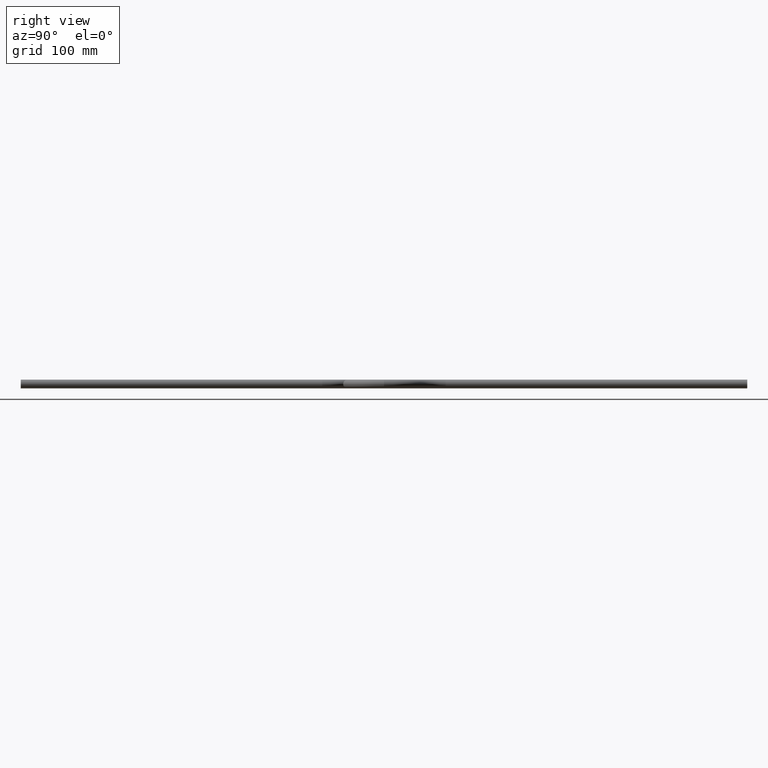
[diagram: clean part render]
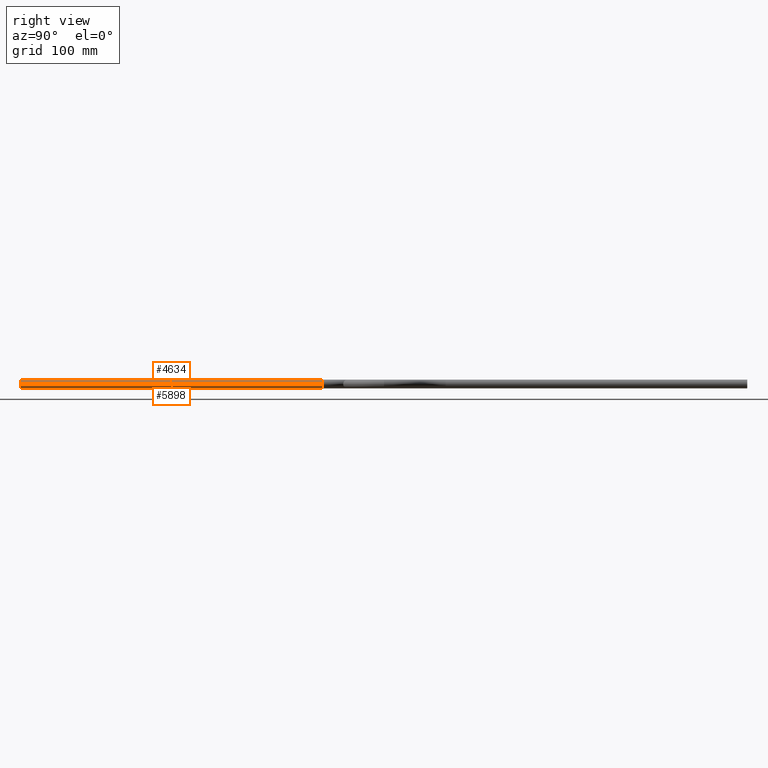
[diagram: same view with one multi-face feature highlighted, each face labeled with its STEP entity id]
A machine part, right view. The highlighted faces form ONE feature: a constant-radius fillet chain: 2 tangent blend faces with common blend radius 6 mm. The faces share edges in the B-rep.
Their STEP definitions:
[1] entity #4634 (Cylinder):
#59 = CARTESIAN_POINT ( 'NONE',  ( 6.000000000000000900, 0.0000000000000000000, 0.0000000000000000000 ) ) ;
#395 = VECTOR ( 'NONE', #6186, 1000.000000000000000 ) ;
#588 = ORIENTED_EDGE ( 'NONE', *, *, #3270, .T. ) ;
#1015 = ORIENTED_EDGE ( 'NONE', *, *, #1929, .T. ) ;
#1109 = VERTEX_POINT ( 'NONE', #1862 ) ;
#1172 = ORIENTED_EDGE ( 'NONE', *, *, #5190, .F. ) ;
#1279 = EDGE_LOOP ( 'NONE', ( #1172, #588, #1015, #6140 ) ) ;
#1304 = CARTESIAN_POINT ( 'NONE',  ( 9.281620964509639900E-016, 415.0000000000000000, 0.0000000000000000000 ) ) ;
#1669 = CIRCLE ( 'NONE', #1974, 6.000000000000000900 ) ;
#1770 = LINE ( 'NONE', #3269, #395 ) ;
#1832 = DIRECTION ( 'NONE',  ( 0.0000000000000000000, 0.0000000000000000000, 1.000000000000000000 ) ) ;
#1862 = CARTESIAN_POINT ( 'NONE',  ( -6.000000000000001800, 0.0000000000000000000, 7.347880794884122700E-016 ) ) ;
#1929 = EDGE_CURVE ( 'NONE', #1109, #3875, #3215, .T. ) ;
#1974 = AXIS2_PLACEMENT_3D ( 'NONE', #1304, #4915, #1832 ) ;
#2421 = CARTESIAN_POINT ( 'NONE',  ( 6.000000000000001800, 415.0000000000000000, 0.0000000000000000000 ) ) ;
#3174 = CARTESIAN_POINT ( 'NONE',  ( 9.281620964509639900E-016, 415.0000000000000000, 0.0000000000000000000 ) ) ;
#3215 = CIRCLE ( 'NONE', #3753, 6.000000000000000900 ) ;
#3269 = CARTESIAN_POINT ( 'NONE',  ( 6.000000000000001800, 415.0000000000000000, 0.0000000000000000000 ) ) ;
#3270 = EDGE_CURVE ( 'NONE', #4274, #1109, #5724, .T. ) ;
#3308 = CYLINDRICAL_SURFACE ( 'NONE', #3805, 6.000000000000000900 ) ;
#3476 = FACE_OUTER_BOUND ( 'NONE', #1279, .T. ) ;
#3753 = AXIS2_PLACEMENT_3D ( 'NONE', #5016, #5012, #4997 ) ;
#3805 = AXIS2_PLACEMENT_3D ( 'NONE', #3174, #6086, #5201 ) ;
#3844 = DIRECTION ( 'NONE',  ( -2.236535172170997900E-018, -1.000000000000000000, -0.0000000000000000000 ) ) ;
#3875 = VERTEX_POINT ( 'NONE', #59 ) ;
#4274 = VERTEX_POINT ( 'NONE', #5626 ) ;
#4461 = VECTOR ( 'NONE', #3844, 1000.000000000000000 ) ;
#4634 = ADVANCED_FACE ( 'NONE', ( #3476 ), #3308, .T. ) ;
#4915 = DIRECTION ( 'NONE',  ( 0.0000000000000000000, 1.000000000000000000, 0.0000000000000000000 ) ) ;
#4997 = DIRECTION ( 'NONE',  ( 0.0000000000000000000, 0.0000000000000000000, 1.000000000000000000 ) ) ;
#5012 = DIRECTION ( 'NONE',  ( 0.0000000000000000000, 1.000000000000000000, 0.0000000000000000000 ) ) ;
#5016 = CARTESIAN_POINT ( 'NONE',  ( 0.0000000000000000000, 0.0000000000000000000, 0.0000000000000000000 ) ) ;
#5190 = EDGE_CURVE ( 'NONE', #4274, #5757, #1669, .T. ) ;
#5201 = DIRECTION ( 'NONE',  ( 1.000000000000000000, 0.0000000000000000000, 0.0000000000000000000 ) ) ;
#5481 = CARTESIAN_POINT ( 'NONE',  ( -6.000000000000000000, 415.0000000000000000, 7.347880794884120700E-016 ) ) ;
#5626 = CARTESIAN_POINT ( 'NONE',  ( -6.000000000000000000, 415.0000000000000000, 7.347880794884120700E-016 ) ) ;
#5724 = LINE ( 'NONE', #5481, #4461 ) ;
#5757 = VERTEX_POINT ( 'NONE', #2421 ) ;
#6045 = EDGE_CURVE ( 'NONE', #5757, #3875, #1770, .T. ) ;
#6086 = DIRECTION ( 'NONE',  ( -2.236535172170997900E-018, -1.000000000000000000, -0.0000000000000000000 ) ) ;
#6140 = ORIENTED_EDGE ( 'NONE', *, *, #6045, .F. ) ;
#6186 = DIRECTION ( 'NONE',  ( -2.236535172170997900E-018, -1.000000000000000000, -0.0000000000000000000 ) ) ;
[2] entity #5898 (Cylinder):
#59 = CARTESIAN_POINT ( 'NONE',  ( 6.000000000000000900, 0.0000000000000000000, 0.0000000000000000000 ) ) ;
#395 = VECTOR ( 'NONE', #6186, 1000.000000000000000 ) ;
#807 = CIRCLE ( 'NONE', #2895, 6.000000000000000900 ) ;
#1109 = VERTEX_POINT ( 'NONE', #1862 ) ;
#1481 = CARTESIAN_POINT ( 'NONE',  ( 9.281620964509639900E-016, 415.0000000000000000, 0.0000000000000000000 ) ) ;
#1524 = EDGE_LOOP ( 'NONE', ( #1860, #5751, #1978, #6204 ) ) ;
#1770 = LINE ( 'NONE', #3269, #395 ) ;
#1774 = DIRECTION ( 'NONE',  ( 0.0000000000000000000, 1.000000000000000000, 0.0000000000000000000 ) ) ;
#1860 = ORIENTED_EDGE ( 'NONE', *, *, #3270, .F. ) ;
#1862 = CARTESIAN_POINT ( 'NONE',  ( -6.000000000000001800, 0.0000000000000000000, 7.347880794884122700E-016 ) ) ;
#1879 = DIRECTION ( 'NONE',  ( 0.0000000000000000000, 1.000000000000000000, 0.0000000000000000000 ) ) ;
#1978 = ORIENTED_EDGE ( 'NONE', *, *, #6045, .T. ) ;
#2421 = CARTESIAN_POINT ( 'NONE',  ( 6.000000000000001800, 415.0000000000000000, 0.0000000000000000000 ) ) ;
#2895 = AXIS2_PLACEMENT_3D ( 'NONE', #4867, #1774, #5348 ) ;
#2901 = CIRCLE ( 'NONE', #3020, 6.000000000000000900 ) ;
#3020 = AXIS2_PLACEMENT_3D ( 'NONE', #4962, #1879, #5431 ) ;
#3269 = CARTESIAN_POINT ( 'NONE',  ( 6.000000000000001800, 415.0000000000000000, 0.0000000000000000000 ) ) ;
#3270 = EDGE_CURVE ( 'NONE', #4274, #1109, #5724, .T. ) ;
#3798 = CYLINDRICAL_SURFACE ( 'NONE', #4617, 6.000000000000000900 ) ;
#3844 = DIRECTION ( 'NONE',  ( -2.236535172170997900E-018, -1.000000000000000000, -0.0000000000000000000 ) ) ;
#3875 = VERTEX_POINT ( 'NONE', #59 ) ;
#3969 = FACE_OUTER_BOUND ( 'NONE', #1524, .T. ) ;
#4004 = DIRECTION ( 'NONE',  ( -2.236535172170997900E-018, -1.000000000000000000, -0.0000000000000000000 ) ) ;
#4089 = EDGE_CURVE ( 'NONE', #3875, #1109, #807, .T. ) ;
#4274 = VERTEX_POINT ( 'NONE', #5626 ) ;
#4461 = VECTOR ( 'NONE', #3844, 1000.000000000000000 ) ;
#4617 = AXIS2_PLACEMENT_3D ( 'NONE', #1481, #4004, #5082 ) ;
#4867 = CARTESIAN_POINT ( 'NONE',  ( 0.0000000000000000000, 0.0000000000000000000, 0.0000000000000000000 ) ) ;
#4962 = CARTESIAN_POINT ( 'NONE',  ( 9.281620964509639900E-016, 415.0000000000000000, 0.0000000000000000000 ) ) ;
#5082 = DIRECTION ( 'NONE',  ( 1.000000000000000000, 0.0000000000000000000, 0.0000000000000000000 ) ) ;
#5228 = EDGE_CURVE ( 'NONE', #5757, #4274, #2901, .T. ) ;
#5348 = DIRECTION ( 'NONE',  ( 0.0000000000000000000, 0.0000000000000000000, 1.000000000000000000 ) ) ;
#5431 = DIRECTION ( 'NONE',  ( 0.0000000000000000000, 0.0000000000000000000, 1.000000000000000000 ) ) ;
#5481 = CARTESIAN_POINT ( 'NONE',  ( -6.000000000000000000, 415.0000000000000000, 7.347880794884120700E-016 ) ) ;
#5626 = CARTESIAN_POINT ( 'NONE',  ( -6.000000000000000000, 415.0000000000000000, 7.347880794884120700E-016 ) ) ;
#5724 = LINE ( 'NONE', #5481, #4461 ) ;
#5751 = ORIENTED_EDGE ( 'NONE', *, *, #5228, .F. ) ;
#5757 = VERTEX_POINT ( 'NONE', #2421 ) ;
#5898 = ADVANCED_FACE ( 'NONE', ( #3969 ), #3798, .T. ) ;
#6045 = EDGE_CURVE ( 'NONE', #5757, #3875, #1770, .T. ) ;
#6186 = DIRECTION ( 'NONE',  ( -2.236535172170997900E-018, -1.000000000000000000, -0.0000000000000000000 ) ) ;
#6204 = ORIENTED_EDGE ( 'NONE', *, *, #4089, .T. ) ;